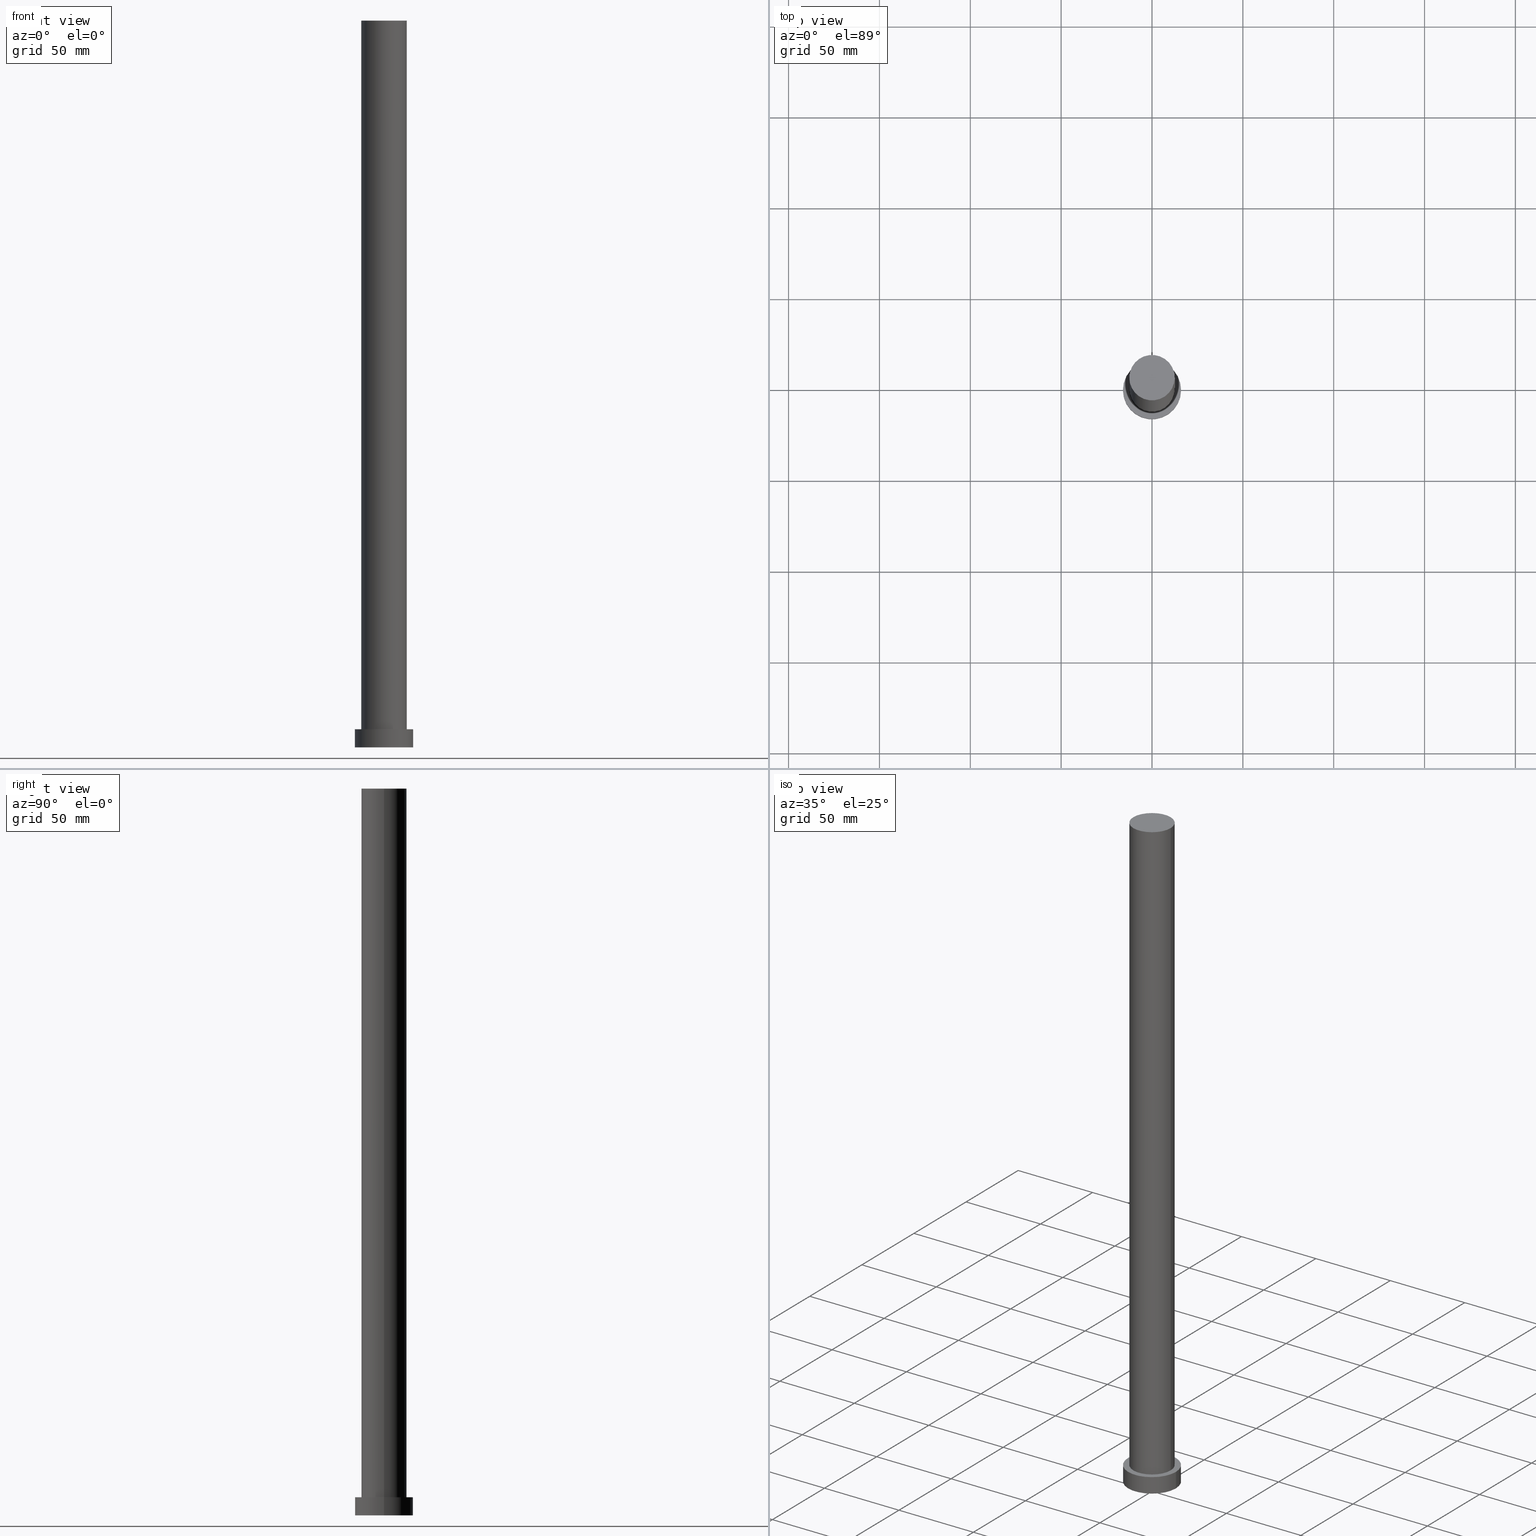
[diagram: canonical four-view strip — front | top / right | iso, engineering-drawing reading convention]
A machine part, canonical four-view strip (front | top / right | iso — engineering-drawing reading convention). The complete STEP part file that produces these views, byte-faithful:
ISO-10303-21;
HEADER;
FILE_DESCRIPTION (( 'STEP AP203' ),
    '1' );
FILE_NAME ('df3d.STEP',
    '2023-02-13T07:31:52',
    ( '' ),
    ( '' ),
    'SwSTEP 2.0',
    'SolidWorks 2019',
    '' );
FILE_SCHEMA (( 'CONFIG_CONTROL_DESIGN' ));
ENDSEC;

DATA;
#1 = CARTESIAN_POINT ( 'NONE',  ( 0.000000000000000000, 0.000000000000000000, 10.00000000000000000 ) ) ;
#2 = DATE_AND_TIME ( #221, #139 ) ;
#3 = AXIS2_PLACEMENT_3D ( 'NONE', #87, #96, #171 ) ;
#4 = DIRECTION ( 'NONE',  ( 1.000000000000000000, 0.000000000000000000, 0.000000000000000000 ) ) ;
#5 = PERSON_AND_ORGANIZATION ( #122, #33 ) ;
#6 = DIRECTION ( 'NONE',  ( 1.000000000000000000, 0.000000000000000000, 0.000000000000000000 ) ) ;
#7 = CYLINDRICAL_SURFACE ( 'NONE', #3, 16.00000000000000000 ) ;
#8 = VECTOR ( 'NONE', #228, 1000.000000000000000 ) ;
#9 = CC_DESIGN_PERSON_AND_ORGANIZATION_ASSIGNMENT ( #135, #223, ( #72 ) ) ;
#10 =( NAMED_UNIT ( * ) PLANE_ANGLE_UNIT ( ) SI_UNIT ( $, .RADIAN. ) );
#11 = ADVANCED_FACE ( 'NONE', ( #162 ), #38, .T. ) ;
#12 = CARTESIAN_POINT ( 'NONE',  ( 0.000000000000000000, 0.000000000000000000, 0.000000000000000000 ) ) ;
#13 = DIRECTION ( 'NONE',  ( 1.000000000000000000, 0.000000000000000000, 0.000000000000000000 ) ) ;
#14 = LOCAL_TIME ( 8, 31, 52.00000000000000000, #164 ) ;
#15 = DIRECTION ( 'NONE',  ( -0.000000000000000000, -0.000000000000000000, -1.000000000000000000 ) ) ;
#16 = EDGE_LOOP ( 'NONE', ( #236, #250, #104, #105 ) ) ;
#17 = PERSON_AND_ORGANIZATION_ROLE ( 'classification_officer' ) ;
#18 = DIRECTION ( 'NONE',  ( -0.000000000000000000, -0.000000000000000000, -1.000000000000000000 ) ) ;
#19 = CC_DESIGN_APPROVAL ( #78, ( #213 ) ) ;
#20 = COORDINATED_UNIVERSAL_TIME_OFFSET ( 1, 0, .AHEAD. ) ;
#21 = ORIENTED_EDGE ( 'NONE', *, *, #255, .F. ) ;
#22 = PERSON_AND_ORGANIZATION_ROLE ( 'creator' ) ;
#23 = CARTESIAN_POINT ( 'NONE',  ( 0.000000000000000000, 0.000000000000000000, 10.00000000000000000 ) ) ;
#24 = PERSON_AND_ORGANIZATION ( #122, #33 ) ;
#25 = CARTESIAN_POINT ( 'NONE',  ( 0.000000000000000000, 0.000000000000000000, 400.0000000000000000 ) ) ;
#26 = APPROVAL_STATUS ( 'not_yet_approved' ) ;
#27 = AXIS2_PLACEMENT_3D ( 'NONE', #1, #69, #30 ) ;
#28 = VECTOR ( 'NONE', #18, 1000.000000000000000 ) ;
#29 = DIRECTION ( 'NONE',  ( 0.000000000000000000, 0.000000000000000000, 1.000000000000000000 ) ) ;
#30 = DIRECTION ( 'NONE',  ( 1.000000000000000000, 0.000000000000000000, 0.000000000000000000 ) ) ;
#31 = CIRCLE ( 'NONE', #27, 16.00000000000000000 ) ;
#32 =( NAMED_UNIT ( * ) SI_UNIT ( $, .STERADIAN. ) SOLID_ANGLE_UNIT ( ) );
#33 = ORGANIZATION ( 'NEUR�EN�', 'NEUR�EN�', '' ) ;
#34 = FACE_OUTER_BOUND ( 'NONE', #248, .T. ) ;
#35 = DIRECTION ( 'NONE',  ( 0.000000000000000000, 0.000000000000000000, 1.000000000000000000 ) ) ;
#36 = VECTOR ( 'NONE', #206, 1000.000000000000000 ) ;
#37 = AXIS2_PLACEMENT_3D ( 'NONE', #181, #15, #84 ) ;
#38 = CYLINDRICAL_SURFACE ( 'NONE', #60, 12.50000000000000000 ) ;
#39 = APPROVAL_STATUS ( 'not_yet_approved' ) ;
#40 = EDGE_CURVE ( 'NONE', #79, #141, #201, .T. ) ;
#41 = FACE_OUTER_BOUND ( 'NONE', #124, .T. ) ;
#42 = ADVANCED_FACE ( 'NONE', ( #142 ), #175, .T. ) ;
#43 = DIRECTION ( 'NONE',  ( 1.000000000000000000, 0.000000000000000000, 0.000000000000000000 ) ) ;
#44 = PERSON_AND_ORGANIZATION_ROLE ( 'design_supplier' ) ;
#45 = CARTESIAN_POINT ( 'NONE',  ( -16.00000000000000000, 0.000000000000000000, 0.000000000000000000 ) ) ;
#46 = VECTOR ( 'NONE', #185, 1000.000000000000000 ) ;
#47 = EDGE_CURVE ( 'NONE', #57, #215, #195, .T. ) ;
#48 = DIRECTION ( 'NONE',  ( 0.000000000000000000, 0.000000000000000000, 1.000000000000000000 ) ) ;
#49 = CC_DESIGN_DATE_AND_TIME_ASSIGNMENT ( #152, #225, ( #109 ) ) ;
#50 = FACE_OUTER_BOUND ( 'NONE', #140, .T. ) ;
#51 =( LENGTH_UNIT ( ) NAMED_UNIT ( * ) SI_UNIT ( .MILLI., .METRE. ) );
#52 = EDGE_CURVE ( 'NONE', #141, #54, #115, .T. ) ;
#53 = DIRECTION ( 'NONE',  ( 1.000000000000000000, 0.000000000000000000, 0.000000000000000000 ) ) ;
#54 = VERTEX_POINT ( 'NONE', #148 ) ;
#55 =( GEOMETRIC_REPRESENTATION_CONTEXT ( 3 ) GLOBAL_UNCERTAINTY_ASSIGNED_CONTEXT ( ( #92 ) ) GLOBAL_UNIT_ASSIGNED_CONTEXT ( ( #51, #10, #32 ) ) REPRESENTATION_CONTEXT ( 'NONE', 'WORKASPACE' ) );
#56 = DIRECTION ( 'NONE',  ( 1.000000000000000000, 0.000000000000000000, 0.000000000000000000 ) ) ;
#57 = VERTEX_POINT ( 'NONE', #222 ) ;
#58 = ADVANCED_FACE ( 'NONE', ( #41 ), #59, .F. ) ;
#59 = PLANE ( 'NONE',  #161 ) ;
#60 = AXIS2_PLACEMENT_3D ( 'NONE', #199, #159, #183 ) ;
#61 = COORDINATED_UNIVERSAL_TIME_OFFSET ( 1, 0, .AHEAD. ) ;
#62 = ADVANCED_FACE ( 'NONE', ( #34 ), #103, .T. ) ;
#63 = CARTESIAN_POINT ( 'NONE',  ( 0.000000000000000000, 0.000000000000000000, 10.00000000000000000 ) ) ;
#64 = APPROVAL_DATE_TIME ( #241, #146 ) ;
#65 = AXIS2_PLACEMENT_3D ( 'NONE', #94, #168, #243 ) ;
#66 = PLANE ( 'NONE',  #121 ) ;
#67 = DATE_AND_TIME ( #182, #95 ) ;
#68 = CC_DESIGN_PERSON_AND_ORGANIZATION_ASSIGNMENT ( #86, #17, ( #166 ) ) ;
#69 = DIRECTION ( 'NONE',  ( 0.000000000000000000, 0.000000000000000000, 1.000000000000000000 ) ) ;
#70 = EDGE_CURVE ( 'NONE', #252, #79, #209, .T. ) ;
#71 = CARTESIAN_POINT ( 'NONE',  ( 16.00000000000000000, 1.959434878635765131E-15, 10.00000000000000000 ) ) ;
#72 = PRODUCT ( 'df3d', 'df3d', '', ( #113 ) ) ;
#73 = CC_DESIGN_APPROVAL ( #146, ( #109 ) ) ;
#74 = CARTESIAN_POINT ( 'NONE',  ( 12.50000000000000000, 1.530808498934191521E-15, 400.0000000000000000 ) ) ;
#75 = AXIS2_PLACEMENT_3D ( 'NONE', #238, #233, #158 ) ;
#76 = CC_DESIGN_PERSON_AND_ORGANIZATION_ASSIGNMENT ( #188, #44, ( #213 ) ) ;
#77 = ORIENTED_EDGE ( 'NONE', *, *, #231, .T. ) ;
#78 = APPROVAL ( #26, 'NEUR�EN�' ) ;
#79 = VERTEX_POINT ( 'NONE', #114 ) ;
#80 = EDGE_CURVE ( 'NONE', #215, #57, #217, .T. ) ;
#81 = ORIENTED_EDGE ( 'NONE', *, *, #119, .T. ) ;
#82 = ORIENTED_EDGE ( 'NONE', *, *, #98, .T. ) ;
#83 = PERSON_AND_ORGANIZATION ( #122, #33 ) ;
#84 = DIRECTION ( 'NONE',  ( -1.000000000000000000, 0.000000000000000000, 0.000000000000000000 ) ) ;
#85 = ORIENTED_EDGE ( 'NONE', *, *, #119, .F. ) ;
#86 = PERSON_AND_ORGANIZATION ( #122, #33 ) ;
#87 = CARTESIAN_POINT ( 'NONE',  ( 0.000000000000000000, 0.000000000000000000, 10.00000000000000000 ) ) ;
#88 = CLOSED_SHELL ( 'NONE', ( #62, #249, #42, #227, #58, #11, #212 ) ) ;
#89 = DATE_AND_TIME ( #205, #170 ) ;
#90 = FACE_BOUND ( 'NONE', #220, .T. ) ;
#91 = EDGE_CURVE ( 'NONE', #219, #57, #132, .T. ) ;
#92 = UNCERTAINTY_MEASURE_WITH_UNIT (LENGTH_MEASURE( 1.000000000000000082E-05 ), #51, 'distance_accuracy_value', 'NONE');
#93 = CARTESIAN_POINT ( 'NONE',  ( 0.000000000000000000, 0.000000000000000000, 400.0000000000000000 ) ) ;
#94 = CARTESIAN_POINT ( 'NONE',  ( 0.000000000000000000, 0.000000000000000000, 10.00000000000000000 ) ) ;
#95 = LOCAL_TIME ( 8, 31, 52.00000000000000000, #20 ) ;
#96 = DIRECTION ( 'NONE',  ( -0.000000000000000000, -0.000000000000000000, -1.000000000000000000 ) ) ;
#97 = AXIS2_PLACEMENT_3D ( 'NONE', #155, #29, #4 ) ;
#98 = EDGE_CURVE ( 'NONE', #79, #252, #173, .T. ) ;
#99 = CC_DESIGN_PERSON_AND_ORGANIZATION_ASSIGNMENT ( #149, #22, ( #213 ) ) ;
#100 = DIRECTION ( 'NONE',  ( 0.000000000000000000, 0.000000000000000000, 1.000000000000000000 ) ) ;
#101 = CIRCLE ( 'NONE', #203, 12.50000000000000000 ) ;
#102 = DIRECTION ( 'NONE',  ( -0.000000000000000000, -0.000000000000000000, -1.000000000000000000 ) ) ;
#103 = CYLINDRICAL_SURFACE ( 'NONE', #151, 12.50000000000000000 ) ;
#104 = ORIENTED_EDGE ( 'NONE', *, *, #40, .T. ) ;
#105 = ORIENTED_EDGE ( 'NONE', *, *, #52, .T. ) ;
#106 = APPROVAL_PERSON_ORGANIZATION ( #5, #78, #179 ) ;
#107 = CALENDAR_DATE ( 2023, 13, 2 ) ;
#108 = ORIENTED_EDGE ( 'NONE', *, *, #255, .T. ) ;
#109 = PRODUCT_DEFINITION ( 'NEZN�M�', '', #213, #242 ) ;
#110 = COORDINATED_UNIVERSAL_TIME_OFFSET ( 1, 0, .AHEAD. ) ;
#111 = CARTESIAN_POINT ( 'NONE',  ( 16.00000000000000000, 1.959434878635765131E-15, 10.00000000000000000 ) ) ;
#112 = MANIFOLD_SOLID_BREP ( 'P�idat vysunut�m3', #88 ) ;
#113 = MECHANICAL_CONTEXT ( 'NONE', #177, 'mechanical' ) ;
#114 = CARTESIAN_POINT ( 'NONE',  ( -12.50000000000000000, 0.000000000000000000, 400.0000000000000000 ) ) ;
#115 = CIRCLE ( 'NONE', #125, 12.50000000000000000 ) ;
#116 = COORDINATED_UNIVERSAL_TIME_OFFSET ( 1, 0, .AHEAD. ) ;
#117 = DIRECTION ( 'NONE',  ( -1.000000000000000000, 0.000000000000000000, 0.000000000000000000 ) ) ;
#118 = DIRECTION ( 'NONE',  ( 0.000000000000000000, 0.000000000000000000, 1.000000000000000000 ) ) ;
#119 = EDGE_CURVE ( 'NONE', #200, #219, #31, .T. ) ;
#120 = DIRECTION ( 'NONE',  ( 1.000000000000000000, 0.000000000000000000, 0.000000000000000000 ) ) ;
#121 = AXIS2_PLACEMENT_3D ( 'NONE', #150, #118, #208 ) ;
#122 = PERSON ( 'NEUR�EN�', 'NEUR�EN�', 'NEUR�EN�', ('NEUR�EN�'), ('NEUR�EN�'), ('NEUR�EN�') ) ;
#123 = ORIENTED_EDGE ( 'NONE', *, *, #40, .F. ) ;
#124 = EDGE_LOOP ( 'NONE', ( #176, #232 ) ) ;
#125 = AXIS2_PLACEMENT_3D ( 'NONE', #63, #127, #13 ) ;
#126 = DIRECTION ( 'NONE',  ( 1.000000000000000000, 0.000000000000000000, -0.000000000000000000 ) ) ;
#127 = DIRECTION ( 'NONE',  ( 0.000000000000000000, 0.000000000000000000, 1.000000000000000000 ) ) ;
#128 = APPROVAL ( #167, 'NEUR�EN�' ) ;
#129 = ORIENTED_EDGE ( 'NONE', *, *, #70, .T. ) ;
#130 = APPROVAL_DATE_TIME ( #2, #78 ) ;
#131 = CARTESIAN_POINT ( 'NONE',  ( 0.000000000000000000, 0.000000000000000000, 0.000000000000000000 ) ) ;
#132 = LINE ( 'NONE', #111, #46 ) ;
#133 = DATE_TIME_ROLE ( 'classification_date' ) ;
#134 = CARTESIAN_POINT ( 'NONE',  ( -12.50000000000000000, 0.000000000000000000, 10.00000000000000000 ) ) ;
#135 = PERSON_AND_ORGANIZATION ( #122, #33 ) ;
#136 = CARTESIAN_POINT ( 'NONE',  ( 0.000000000000000000, 0.000000000000000000, 0.000000000000000000 ) ) ;
#137 = PRODUCT_DEFINITION_SHAPE ( 'NONE', 'NONE',  #109 ) ;
#138 = FACE_OUTER_BOUND ( 'NONE', #229, .T. ) ;
#139 = LOCAL_TIME ( 8, 31, 52.00000000000000000, #116 ) ;
#140 = EDGE_LOOP ( 'NONE', ( #81, #240 ) ) ;
#141 = VERTEX_POINT ( 'NONE', #134 ) ;
#142 = FACE_OUTER_BOUND ( 'NONE', #144, .T. ) ;
#143 = CC_DESIGN_SECURITY_CLASSIFICATION ( #166, ( #213 ) ) ;
#144 = EDGE_LOOP ( 'NONE', ( #174, #85, #254, #198 ) ) ;
#145 = ORIENTED_EDGE ( 'NONE', *, *, #91, .T. ) ;
#146 = APPROVAL ( #39, 'NEUR�EN�' ) ;
#147 = CALENDAR_DATE ( 2023, 13, 2 ) ;
#148 = CARTESIAN_POINT ( 'NONE',  ( 12.50000000000000000, 1.530808498934191521E-15, 10.00000000000000000 ) ) ;
#149 = PERSON_AND_ORGANIZATION ( #122, #33 ) ;
#150 = CARTESIAN_POINT ( 'NONE',  ( 0.000000000000000000, 0.000000000000000000, 400.0000000000000000 ) ) ;
#151 = AXIS2_PLACEMENT_3D ( 'NONE', #196, #102, #117 ) ;
#152 = DATE_AND_TIME ( #147, #247 ) ;
#153 = DIRECTION ( 'NONE',  ( 0.000000000000000000, 0.000000000000000000, 1.000000000000000000 ) ) ;
#154 = APPROVAL_DATE_TIME ( #67, #128 ) ;
#155 = CARTESIAN_POINT ( 'NONE',  ( 0.000000000000000000, 0.000000000000000000, 10.00000000000000000 ) ) ;
#156 = AXIS2_PLACEMENT_3D ( 'NONE', #12, #100, #56 ) ;
#157 = EDGE_CURVE ( 'NONE', #200, #215, #226, .T. ) ;
#158 = DIRECTION ( 'NONE',  ( 1.000000000000000000, 0.000000000000000000, 0.000000000000000000 ) ) ;
#159 = DIRECTION ( 'NONE',  ( -0.000000000000000000, -0.000000000000000000, -1.000000000000000000 ) ) ;
#160 = AXIS2_PLACEMENT_3D ( 'NONE', #25, #211, #6 ) ;
#161 = AXIS2_PLACEMENT_3D ( 'NONE', #131, #35, #126 ) ;
#162 = FACE_OUTER_BOUND ( 'NONE', #16, .T. ) ;
#163 = APPROVAL_ROLE ( '' ) ;
#164 = COORDINATED_UNIVERSAL_TIME_OFFSET ( 1, 0, .AHEAD. ) ;
#165 = DIRECTION ( 'NONE',  ( 0.000000000000000000, 0.000000000000000000, 1.000000000000000000 ) ) ;
#166 = SECURITY_CLASSIFICATION ( '', '', #184 ) ;
#167 = APPROVAL_STATUS ( 'not_yet_approved' ) ;
#168 = DIRECTION ( 'NONE',  ( 0.000000000000000000, 0.000000000000000000, 1.000000000000000000 ) ) ;
#169 = LINE ( 'NONE', #74, #8 ) ;
#170 = LOCAL_TIME ( 8, 31, 52.00000000000000000, #110 ) ;
#171 = DIRECTION ( 'NONE',  ( -1.000000000000000000, 0.000000000000000000, 0.000000000000000000 ) ) ;
#172 = ORIENTED_EDGE ( 'NONE', *, *, #70, .F. ) ;
#173 = CIRCLE ( 'NONE', #160, 12.50000000000000000 ) ;
#174 = ORIENTED_EDGE ( 'NONE', *, *, #91, .F. ) ;
#175 = CYLINDRICAL_SURFACE ( 'NONE', #37, 16.00000000000000000 ) ;
#176 = ORIENTED_EDGE ( 'NONE', *, *, #80, .F. ) ;
#177 = APPLICATION_CONTEXT ( 'configuration controlled 3d designs of mechanical parts and assemblies' ) ;
#178 = EDGE_LOOP ( 'NONE', ( #82, #129 ) ) ;
#179 = APPROVAL_ROLE ( '' ) ;
#180 = APPROVAL_PERSON_ORGANIZATION ( #83, #146, #163 ) ;
#181 = CARTESIAN_POINT ( 'NONE',  ( 0.000000000000000000, 0.000000000000000000, 10.00000000000000000 ) ) ;
#182 = CALENDAR_DATE ( 2023, 13, 2 ) ;
#183 = DIRECTION ( 'NONE',  ( -1.000000000000000000, 0.000000000000000000, 0.000000000000000000 ) ) ;
#184 = SECURITY_CLASSIFICATION_LEVEL ( 'unclassified' ) ;
#185 = DIRECTION ( 'NONE',  ( -0.000000000000000000, -0.000000000000000000, -1.000000000000000000 ) ) ;
#186 = APPLICATION_PROTOCOL_DEFINITION ( 'international standard', 'config_control_design', 1994, #191 ) ;
#187 = APPROVAL_PERSON_ORGANIZATION ( #24, #128, #202 ) ;
#188 = PERSON_AND_ORGANIZATION ( #122, #33 ) ;
#189 = CARTESIAN_POINT ( 'NONE',  ( -16.00000000000000000, 0.000000000000000000, 10.00000000000000000 ) ) ;
#190 = EDGE_CURVE ( 'NONE', #219, #200, #194, .T. ) ;
#191 = APPLICATION_CONTEXT ( 'configuration controlled 3d designs of mechanical parts and assemblies' ) ;
#192 = CARTESIAN_POINT ( 'NONE',  ( -16.00000000000000000, 0.000000000000000000, 10.00000000000000000 ) ) ;
#193 = PRODUCT_RELATED_PRODUCT_CATEGORY ( 'detail', '', ( #72 ) ) ;
#194 = CIRCLE ( 'NONE', #97, 16.00000000000000000 ) ;
#195 = CIRCLE ( 'NONE', #75, 16.00000000000000000 ) ;
#196 = CARTESIAN_POINT ( 'NONE',  ( 0.000000000000000000, 0.000000000000000000, 400.0000000000000000 ) ) ;
#197 = CC_DESIGN_APPROVAL ( #128, ( #166 ) ) ;
#198 = ORIENTED_EDGE ( 'NONE', *, *, #80, .T. ) ;
#199 = CARTESIAN_POINT ( 'NONE',  ( 0.000000000000000000, 0.000000000000000000, 400.0000000000000000 ) ) ;
#200 = VERTEX_POINT ( 'NONE', #189 ) ;
#201 = LINE ( 'NONE', #234, #28 ) ;
#202 = APPROVAL_ROLE ( '' ) ;
#203 = AXIS2_PLACEMENT_3D ( 'NONE', #23, #165, #53 ) ;
#204 = CARTESIAN_POINT ( 'NONE',  ( 12.50000000000000000, 1.530808498934191521E-15, 400.0000000000000000 ) ) ;
#205 = CALENDAR_DATE ( 2023, 13, 2 ) ;
#206 = DIRECTION ( 'NONE',  ( -0.000000000000000000, -0.000000000000000000, -1.000000000000000000 ) ) ;
#207 = SHAPE_DEFINITION_REPRESENTATION ( #137, #251 ) ;
#208 = DIRECTION ( 'NONE',  ( 1.000000000000000000, 0.000000000000000000, -0.000000000000000000 ) ) ;
#209 = CIRCLE ( 'NONE', #235, 12.50000000000000000 ) ;
#210 = CC_DESIGN_PERSON_AND_ORGANIZATION_ASSIGNMENT ( #239, #237, ( #109 ) ) ;
#211 = DIRECTION ( 'NONE',  ( 0.000000000000000000, 0.000000000000000000, 1.000000000000000000 ) ) ;
#212 = ADVANCED_FACE ( 'NONE', ( #244 ), #66, .T. ) ;
#213 = PRODUCT_DEFINITION_FORMATION_WITH_SPECIFIED_SOURCE ( 'LIBOVOLN�', '', #72, .NOT_KNOWN. ) ;
#214 = ORIENTED_EDGE ( 'NONE', *, *, #157, .F. ) ;
#215 = VERTEX_POINT ( 'NONE', #45 ) ;
#216 = ORIENTED_EDGE ( 'NONE', *, *, #190, .F. ) ;
#217 = CIRCLE ( 'NONE', #245, 16.00000000000000000 ) ;
#218 = ORIENTED_EDGE ( 'NONE', *, *, #52, .F. ) ;
#219 = VERTEX_POINT ( 'NONE', #71 ) ;
#220 = EDGE_LOOP ( 'NONE', ( #218, #21 ) ) ;
#221 = CALENDAR_DATE ( 2023, 13, 2 ) ;
#222 = CARTESIAN_POINT ( 'NONE',  ( 16.00000000000000000, 1.959434878635765131E-15, 0.000000000000000000 ) ) ;
#223 = PERSON_AND_ORGANIZATION_ROLE ( 'design_owner' ) ;
#224 = PLANE ( 'NONE',  #65 ) ;
#225 = DATE_TIME_ROLE ( 'creation_date' ) ;
#226 = LINE ( 'NONE', #192, #36 ) ;
#227 = ADVANCED_FACE ( 'NONE', ( #90, #50 ), #224, .T. ) ;
#228 = DIRECTION ( 'NONE',  ( -0.000000000000000000, -0.000000000000000000, -1.000000000000000000 ) ) ;
#229 = EDGE_LOOP ( 'NONE', ( #216, #145, #230, #214 ) ) ;
#230 = ORIENTED_EDGE ( 'NONE', *, *, #47, .T. ) ;
#231 = EDGE_CURVE ( 'NONE', #252, #54, #169, .T. ) ;
#232 = ORIENTED_EDGE ( 'NONE', *, *, #47, .F. ) ;
#233 = DIRECTION ( 'NONE',  ( 0.000000000000000000, 0.000000000000000000, 1.000000000000000000 ) ) ;
#234 = CARTESIAN_POINT ( 'NONE',  ( -12.50000000000000000, 0.000000000000000000, 400.0000000000000000 ) ) ;
#235 = AXIS2_PLACEMENT_3D ( 'NONE', #93, #48, #43 ) ;
#236 = ORIENTED_EDGE ( 'NONE', *, *, #231, .F. ) ;
#237 = PERSON_AND_ORGANIZATION_ROLE ( 'creator' ) ;
#238 = CARTESIAN_POINT ( 'NONE',  ( 0.000000000000000000, 0.000000000000000000, 0.000000000000000000 ) ) ;
#239 = PERSON_AND_ORGANIZATION ( #122, #33 ) ;
#240 = ORIENTED_EDGE ( 'NONE', *, *, #190, .T. ) ;
#241 = DATE_AND_TIME ( #107, #14 ) ;
#242 = DESIGN_CONTEXT ( 'detailed design', #191, 'design' ) ;
#243 = DIRECTION ( 'NONE',  ( 1.000000000000000000, 0.000000000000000000, -0.000000000000000000 ) ) ;
#244 = FACE_OUTER_BOUND ( 'NONE', #178, .T. ) ;
#245 = AXIS2_PLACEMENT_3D ( 'NONE', #136, #153, #120 ) ;
#246 = APPLICATION_PROTOCOL_DEFINITION ( 'international standard', 'config_control_design', 1994, #177 ) ;
#247 = LOCAL_TIME ( 8, 31, 52.00000000000000000, #61 ) ;
#248 = EDGE_LOOP ( 'NONE', ( #172, #77, #108, #123 ) ) ;
#249 = ADVANCED_FACE ( 'NONE', ( #138 ), #7, .T. ) ;
#250 = ORIENTED_EDGE ( 'NONE', *, *, #98, .F. ) ;
#251 = ADVANCED_BREP_SHAPE_REPRESENTATION ( 'df3d', ( #112, #156 ), #55 ) ;
#252 = VERTEX_POINT ( 'NONE', #204 ) ;
#253 = CC_DESIGN_DATE_AND_TIME_ASSIGNMENT ( #89, #133, ( #166 ) ) ;
#254 = ORIENTED_EDGE ( 'NONE', *, *, #157, .T. ) ;
#255 = EDGE_CURVE ( 'NONE', #54, #141, #101, .T. ) ;
ENDSEC;
END-ISO-10303-21;
